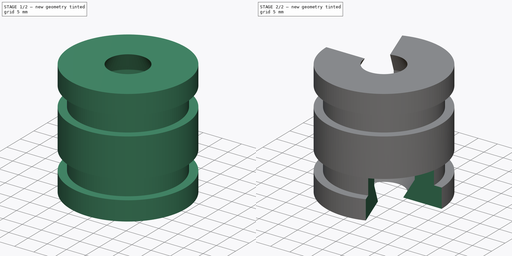
[diagram: build sequence overview — one tinted view per stage of 2, left to right]
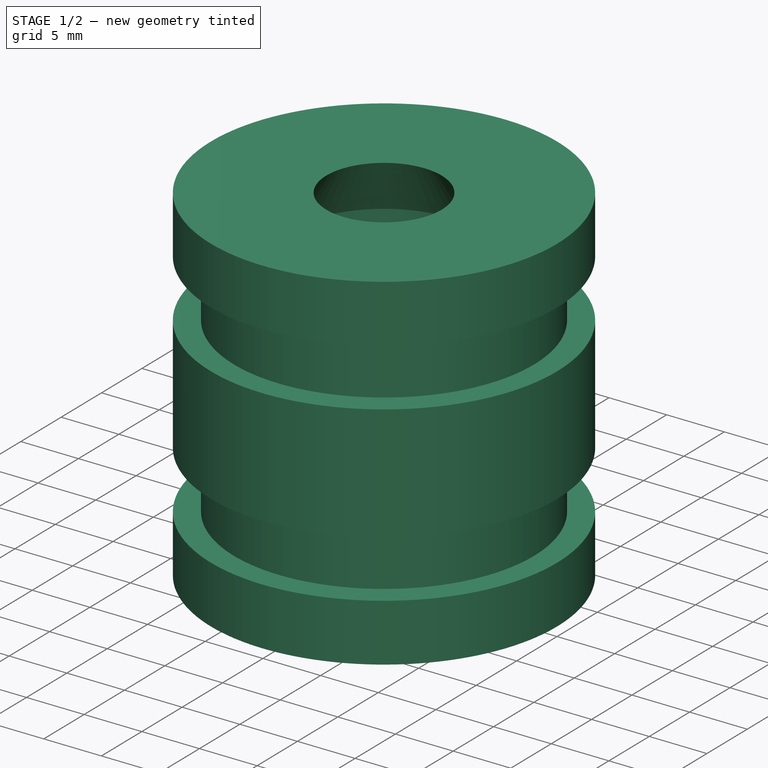
[diagram: stage 1 of 2 — iso view after this stage's code; geometry added in this stage tinted green]
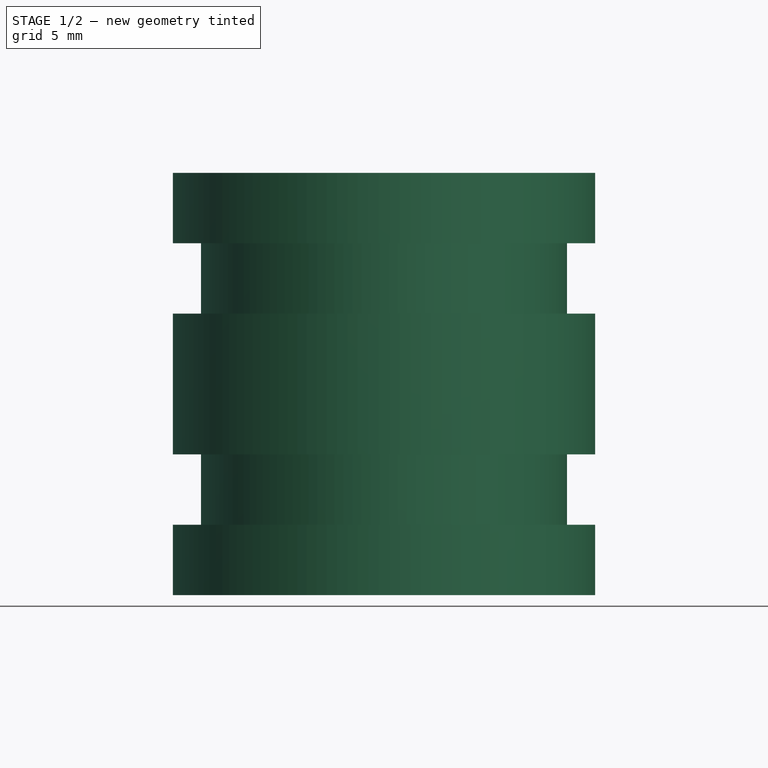
[diagram: stage 1 of 2 — front view after this stage's code; geometry added in this stage tinted green]
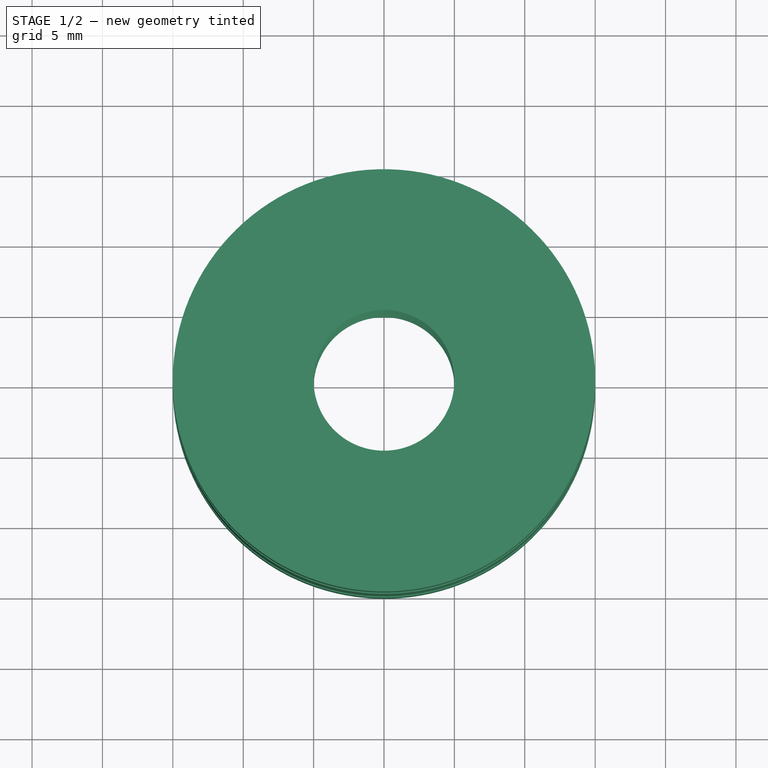
[diagram: stage 1 of 2 — top view after this stage's code; geometry added in this stage tinted green]
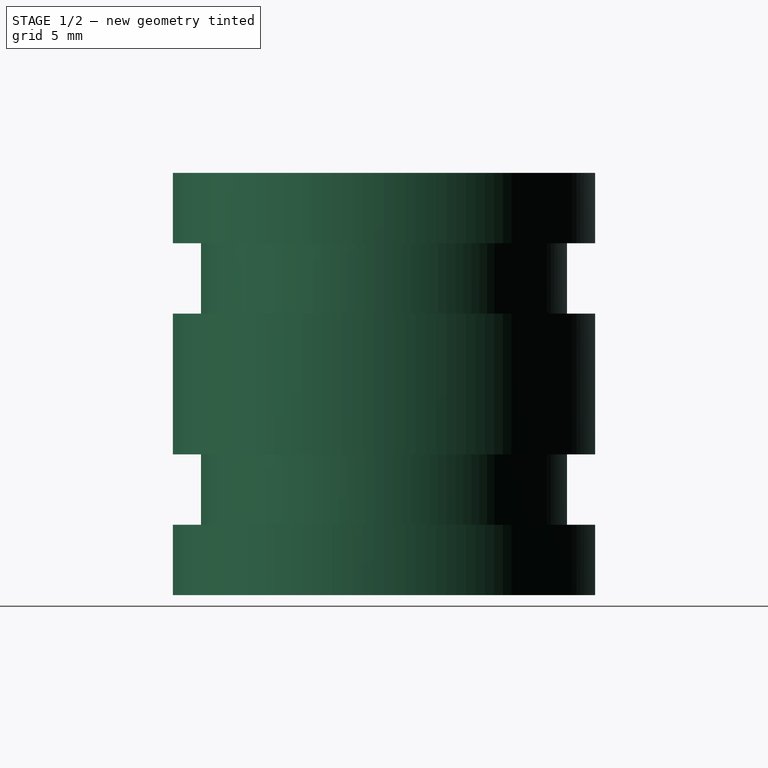
[diagram: stage 1 of 2 — right view after this stage's code; geometry added in this stage tinted green]
FCSTD DOCUMENT  (FreeCAD 1.2R20251216 (Git shallow))
Label: lesson9
License: All rights reserved
LicenseURL: https://en.wikipedia.org/wiki/All_rights_reserved
objects: Sketcher::SketchObject×2, App::Point×1, PartDesign::Revolution×1, PartDesign::Groove×1, PartDesign::Body×1
note: 11 computed .brp shape members not serialized (recipe doc carries the construction recipe); baked Part::Feature solids carry a one-line shape summary decoded from their .brp

FEATURE [App::Point] Origin001
  Role = Origin
FEATURE [Sketcher::SketchObject] Sketch
  ArcFitTolerance = 1e-06
  AttachmentSupport = -> [Origin]
  ExternalTypes = [0]
  FullyConstrained = true
  MakeInternals = false
  MapMode = 5
  Placement = pos=(0,0,0) rot=(1,0,0;1.5708rad)
  sketch-geometry (14):
    g0: LineSegment StartX=-5 StartY=15 StartZ=0 EndX=-15 EndY=15 EndZ=0
    g1: LineSegment StartX=-15 StartY=15 StartZ=0 EndX=-15 EndY=10 EndZ=0
    g2: LineSegment StartX=-15 StartY=10 StartZ=0 EndX=-13 EndY=10 EndZ=0
    g3: LineSegment StartX=-13 StartY=10 StartZ=0 EndX=-13 EndY=5 EndZ=0
    g4: LineSegment StartX=-13 StartY=5 StartZ=0 EndX=-15 EndY=5 EndZ=0
    g5: LineSegment StartX=-15 StartY=5 StartZ=0 EndX=-15 EndY=-5 EndZ=0
    g6: LineSegment StartX=-15 StartY=-5 StartZ=0 EndX=-13 EndY=-5 EndZ=0
    g7: LineSegment StartX=-13 StartY=-5 StartZ=0 EndX=-13 EndY=-10 EndZ=0
    g8: LineSegment StartX=-13 StartY=-10 StartZ=0 EndX=-15 EndY=-10 EndZ=0
    g9: LineSegment StartX=-15 StartY=-10 StartZ=0 EndX=-15 EndY=-15 EndZ=0
    g10: LineSegment StartX=-15 StartY=-15 StartZ=0 EndX=-5 EndY=-15 EndZ=0
    g11: LineSegment StartX=-5 StartY=-15 StartZ=0 EndX=-8 EndY=-10 EndZ=0
    g12: LineSegment StartX=-8 StartY=-10 StartZ=0 EndX=-8 EndY=10 EndZ=0
    g13: LineSegment StartX=-8 StartY=10 StartZ=0 EndX=-5 EndY=15 EndZ=0
  constraints (41):
    c: Horizontal(g0)
    c: Coincident(g0,g1)
    c: Vertical(g1)
    c: Coincident(g1,g2)
    c: Horizontal(g2)
    c: Coincident(g2,g3)
    c: Vertical(g3)
    c: Coincident(g3,g4)
    c: Coincident(g4,g5)
    c: Coincident(g5,g6)
    c: Horizontal(g6)
    c: Coincident(g6,g7)
    c: Vertical(g7)
    c: Coincident(g7,g8)
    c: Horizontal(g8)
    c: Coincident(g8,g9)
    c: Vertical(g9)
    c: Coincident(g9,g10)
    c: Horizontal(g10)
    c: Coincident(g10,g11)
    c: Coincident(g11,g12)
    c: Coincident(g12,g13)
    c: Coincident(g13,g0)
    c: Horizontal(g4)
    c: DistanceX(g0,g-1) = 5
    c: DistanceX(g12,g-1) = 8
    c: DistanceX(g0,g0) = 10
    c: Distance(g2,g2) = 2
    c: Distance(g10,g0) = 30
    c: DistanceY(g3,g3) = 5
    c: Equal(g2,g4)
    c: Equal(g4,g6)
    c: Equal(g6,g8)
    c: Equal(g3,g7)
    c: Equal(g9,g1)
    c: DistanceY(g1,g1) = 5
    c: Equal(g13,g11)
    c: Symmetric(g4,g5,g-1)
    c: Equal(g10,g0)
    c: Horizontal(g11,g7)
    c: Horizontal(g2,g12)
FEATURE [PartDesign::Revolution] Revolution
  Angle = 360
  Angle2 = 0
  Axis = (1e-16,1e-16,1)
  Base = (0,0,0)
  Profile = -> Sketch
  ReferenceAxis = -> Z_Axis
  Refine = true
  Suppressed = false
  Type = 0
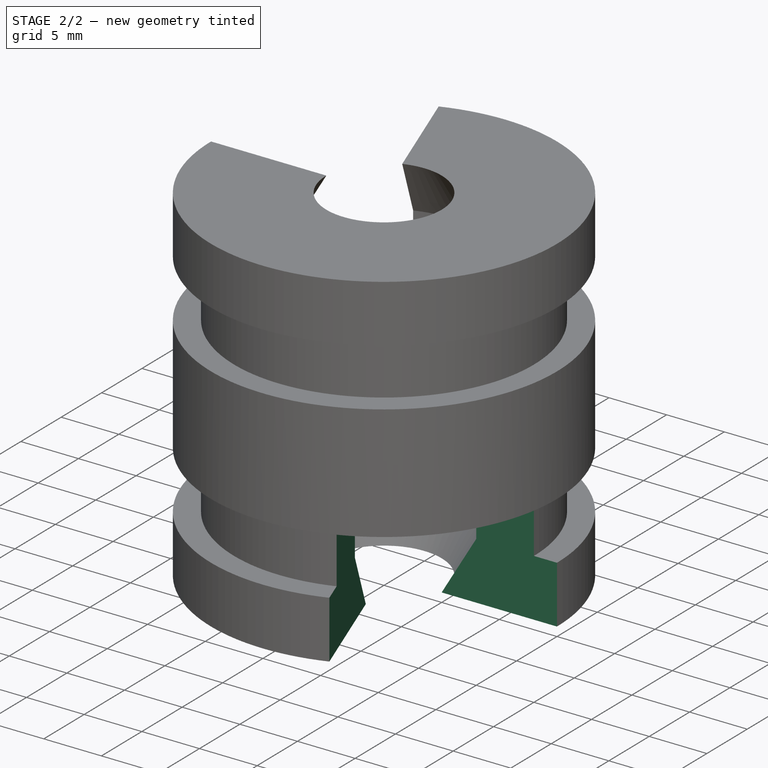
[diagram: stage 2 of 2 — iso view after this stage's code; geometry added in this stage tinted green]
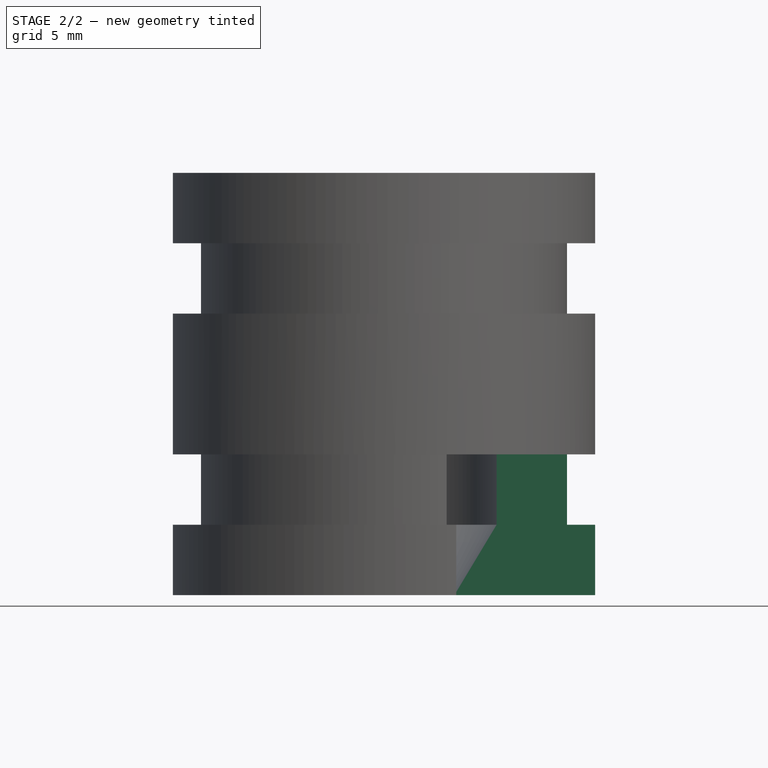
[diagram: stage 2 of 2 — front view after this stage's code; geometry added in this stage tinted green]
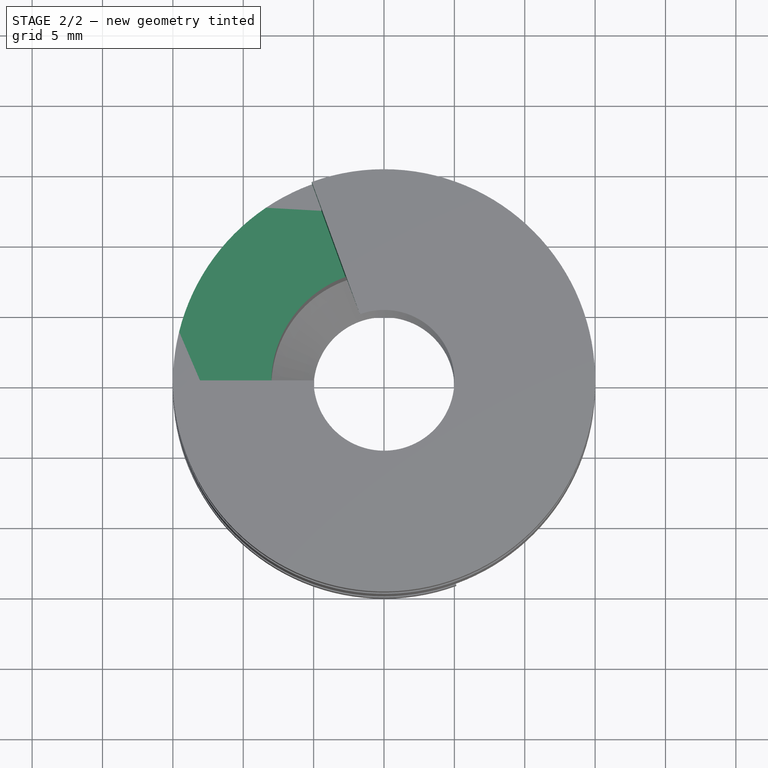
[diagram: stage 2 of 2 — top view after this stage's code; geometry added in this stage tinted green]
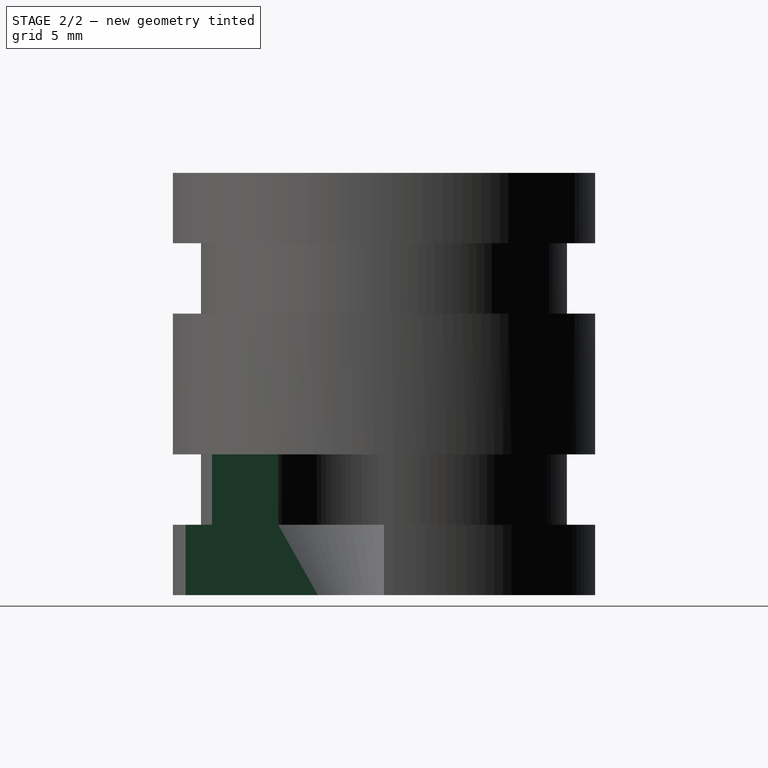
[diagram: stage 2 of 2 — right view after this stage's code; geometry added in this stage tinted green]
FEATURE [Sketcher::SketchObject] Sketch001
  ArcFitTolerance = 1e-06
  AttachmentSupport = -> [Origin]
  ExternalTypes = [0]
  FullyConstrained = true
  MakeInternals = false
  MapMode = 5
  Placement = pos=(0,0,0) rot=(1,0,0;1.5708rad)
  sketch-geometry (8):
    g0: LineSegment StartX=-16 StartY=21 StartZ=0 EndX=-16 EndY=5 EndZ=0
    g1: LineSegment StartX=-16 StartY=5 StartZ=0 EndX=0 EndY=5 EndZ=0
    g2: LineSegment StartX=0 StartY=5 StartZ=0 EndX=0 EndY=21 EndZ=0
    g3: LineSegment StartX=0 StartY=21 StartZ=0 EndX=-16 EndY=21 EndZ=0
    g4: LineSegment StartX=16 StartY=-21 StartZ=0 EndX=16 EndY=-5 EndZ=0
    g5: LineSegment StartX=16 StartY=-5 StartZ=0 EndX=0 EndY=-5 EndZ=0
    g6: LineSegment StartX=0 StartY=-5 StartZ=0 EndX=0 EndY=-21 EndZ=0
    g7: LineSegment StartX=0 StartY=-21 StartZ=0 EndX=16 EndY=-21 EndZ=0
  constraints (20):
    c: Coincident(g0,g1)
    c: Coincident(g1,g2)
    c: Coincident(g2,g3)
    c: Coincident(g3,g0)
    c: Vertical(g0)
    c: Vertical(g2)
    c: Horizontal(g1)
    c: Horizontal(g3)
    c: DistanceX(g3,g3) = 16
    c: Equal(g3,g0)
    c: PointOnObject(g1,g-2)
    c: DistanceY(g-1,g1) = 5
    c: Symmetric(g0,g4,g-1)
    c: Symmetric(g0,g4,g-1)
    c: Symmetric(g1,g5,g-1)
    c: Symmetric(g1,g5,g-1)
    c: Symmetric(g2,g6,g-1)
    c: Symmetric(g2,g6,g-1)
    c: Symmetric(g3,g7,g-1)
    c: Symmetric(g3,g7,g-1)
FEATURE [PartDesign::Groove] Groove
  Angle = 70
  Angle2 = 0
  Axis = (0,2e-16,1)
  Base = (0,0,0)
  BaseFeature = -> Revolution
  Profile = -> Sketch001
  ReferenceAxis = -> Sketch001 [V_Axis]
  Refine = true
  Reversed = true
  Suppressed = false
  Type = 0
FEATURE [PartDesign::Body] Body
  AllowCompound = true
  Group = -> [Sketch,Revolution,Sketch001,Groove]
  Origin = -> Origin
  Tip = -> Groove
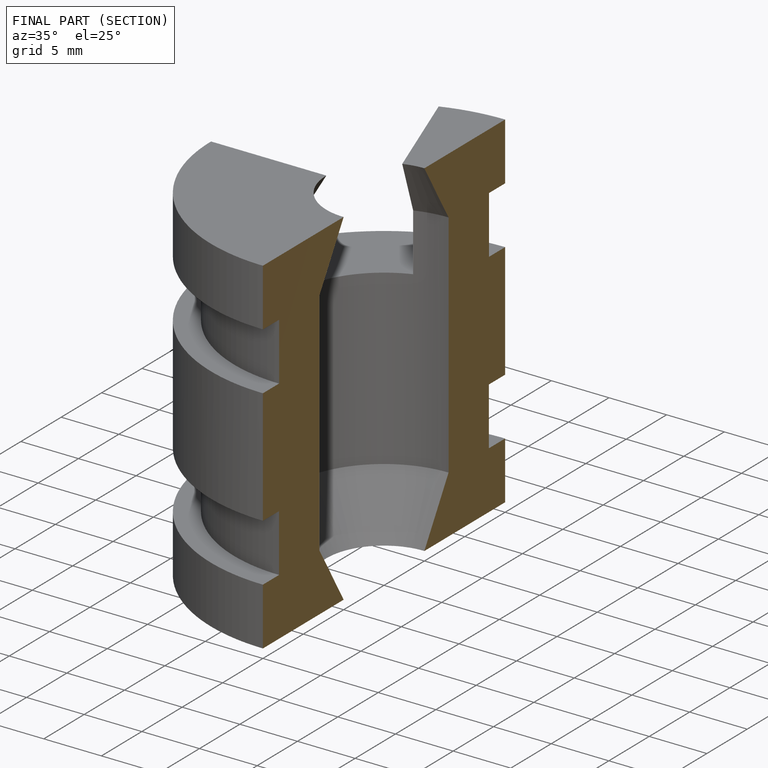
[diagram: finished part — half-section view (interior)]
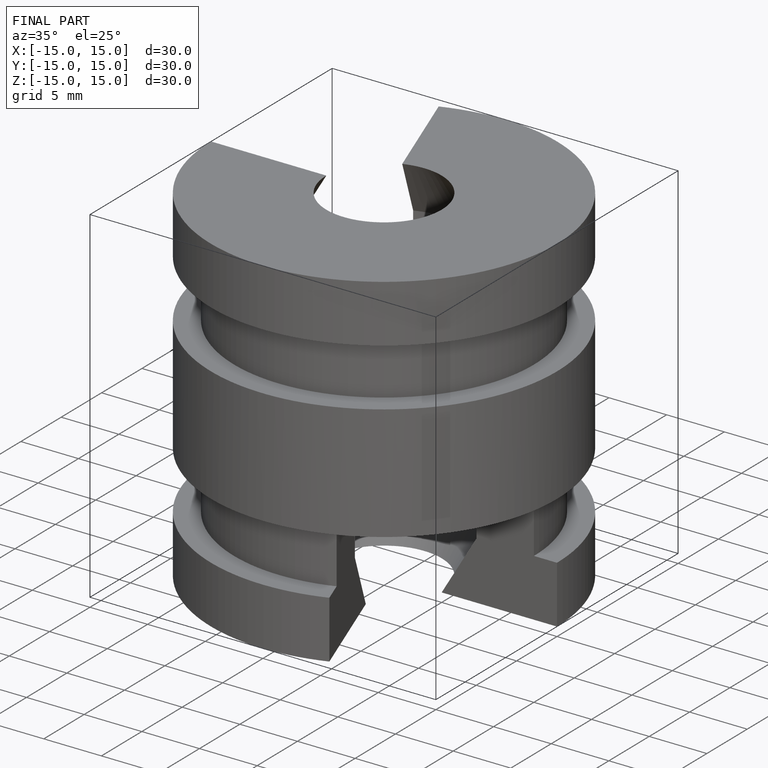
[diagram: finished part — iso view with bounding-box wireframe]
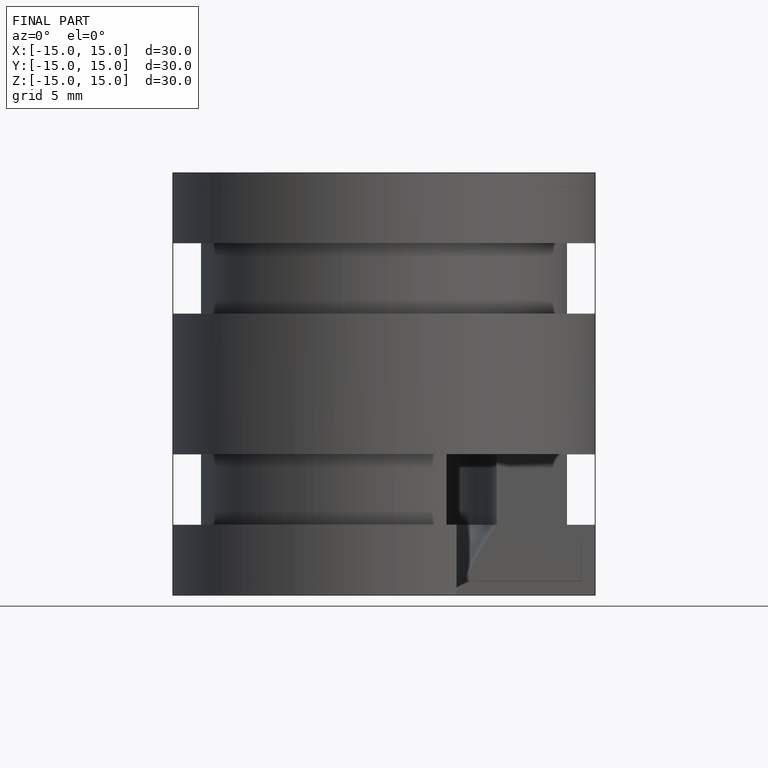
[diagram: finished part — front view with bounding-box wireframe]
